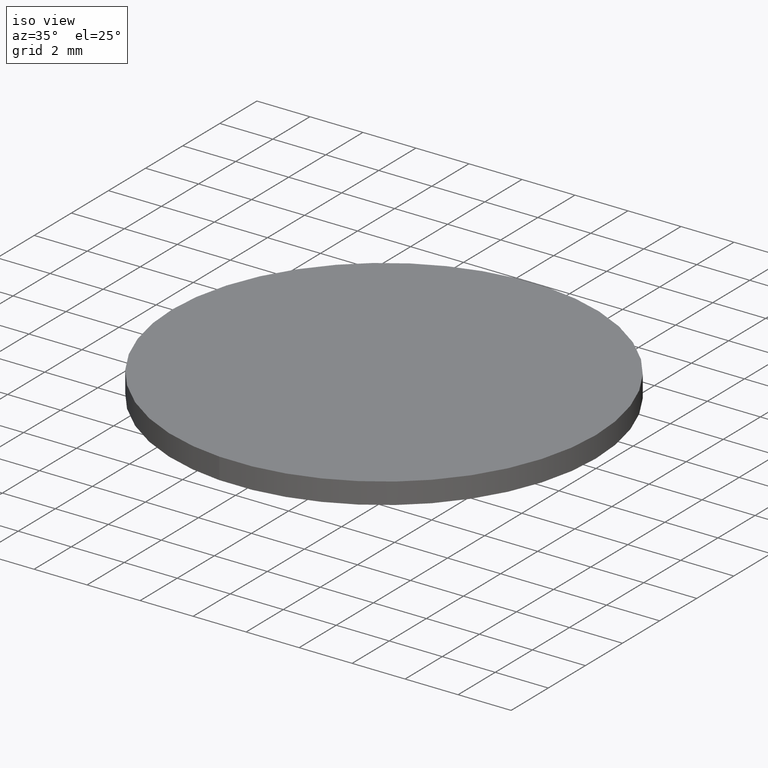
[diagram: clean part render]
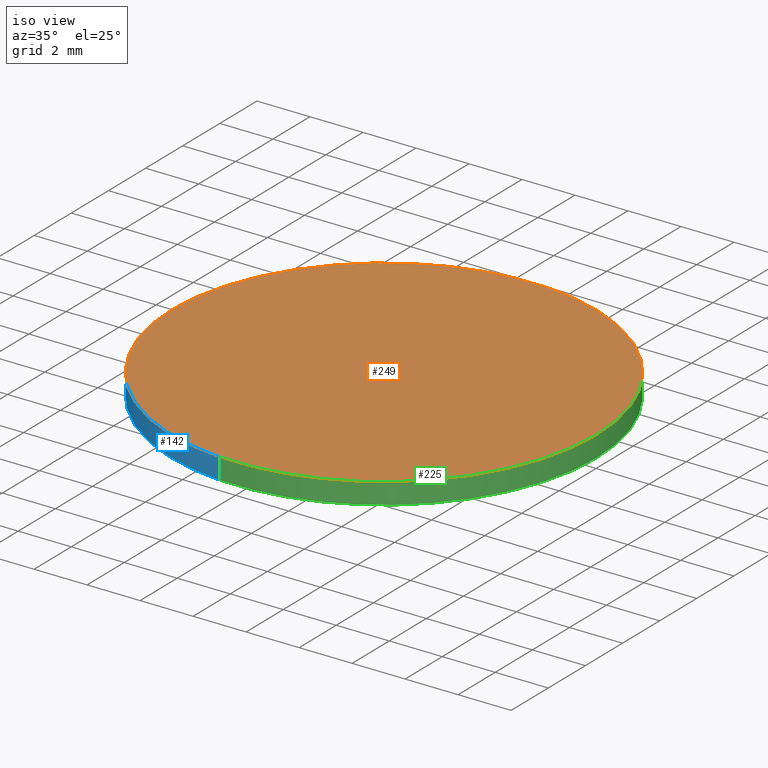
[diagram: same view with three faces highlighted in distinct colors, each labeled with its STEP entity id]
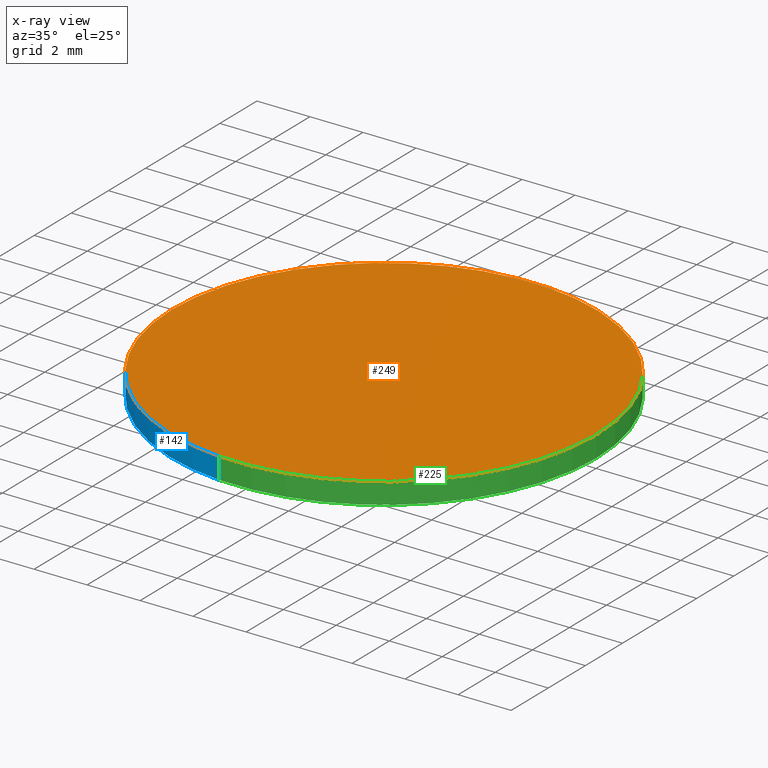
[diagram: x-ray of the same camera — body ghosted, the three highlighted faces saturated]
A machine part, iso view with three faces highlighted in distinct colors.
The next image is the same camera in x-ray (body ghosted, the three faces saturated) — at least one of them is partly hidden behind the body in this view.
Their STEP definitions:

[orange] entity #249 — the highlighted face is a freeform B-spline surface patch.
#79=CARTESIAN_POINT('',(-0.627668179024245,-7.975339030851241,0.800000000000023));
#80=VERTEX_POINT('',#79);
#86=CARTESIAN_POINT('',(-8.0,0.0,0.800000000000023));
#87=VERTEX_POINT('',#86);
#88=CARTESIAN_POINT('',(-8.0,0.0,0.800000000000023));
#89=CARTESIAN_POINT('',(-8.0,-7.395128199521873,0.800000000000023));
#90=CARTESIAN_POINT('',(-0.627668179024245,-7.975339030851242,0.800000000000023));
#98=(BOUNDED_CURVE()B_SPLINE_CURVE(2,(#88,#89,#90),.UNSPECIFIED.,.F.,.U.)B_SPLINE_CURVE_WITH_KNOTS((3,3),(0.0,0.236331399222893),.UNSPECIFIED.)CURVE()GEOMETRIC_REPRESENTATION_ITEM()RATIONAL_B_SPLINE_CURVE((1.0,0.723120543099679,0.969723561921978))REPRESENTATION_ITEM(''));
#99=EDGE_CURVE('',#87,#80,#98,.T.);
#101=CARTESIAN_POINT('',(0.627668179024243,7.975339030851241,0.800000000000023));
#102=VERTEX_POINT('',#101);
#103=CARTESIAN_POINT('',(0.627668179024243,7.975339030851241,0.800000000000023));
#104=CARTESIAN_POINT('',(0.314318552019287,8.0,0.800000000000023));
#105=CARTESIAN_POINT('',(0.0,8.0,0.800000000000023));
#106=CARTESIAN_POINT('',(-8.0,8.0,0.800000000000023));
#107=CARTESIAN_POINT('',(-8.0,0.0,0.800000000000023));
#115=(BOUNDED_CURVE()B_SPLINE_CURVE(2,(#103,#104,#105,#106,#107),.UNSPECIFIED.,.F.,.U.)B_SPLINE_CURVE_WITH_KNOTS((3,2,3),(0.736331399222893,0.750000000000000,1.0),.UNSPECIFIED.)CURVE()GEOMETRIC_REPRESENTATION_ITEM()RATIONAL_B_SPLINE_CURVE((0.969723561921979,0.983986238086868,1.0,0.707106781186548,1.0))REPRESENTATION_ITEM(''));
#116=EDGE_CURVE('',#102,#87,#115,.T.);
#192=CARTESIAN_POINT('',(8.0,0.0,0.800000000000023));
#193=VERTEX_POINT('',#192);
#194=CARTESIAN_POINT('',(8.0,0.0,0.800000000000023));
#195=CARTESIAN_POINT('',(8.0,7.395128199521874,0.800000000000023));
#196=CARTESIAN_POINT('',(0.627668179024243,7.975339030851241,0.800000000000023));
#204=(BOUNDED_CURVE()B_SPLINE_CURVE(2,(#194,#195,#196),.UNSPECIFIED.,.F.,.U.)B_SPLINE_CURVE_WITH_KNOTS((3,3),(0.500000000000000,0.736331399222893),.UNSPECIFIED.)CURVE()GEOMETRIC_REPRESENTATION_ITEM()RATIONAL_B_SPLINE_CURVE((1.0,0.723120543099679,0.969723561921979))REPRESENTATION_ITEM(''));
#205=EDGE_CURVE('',#193,#102,#204,.T.);
#207=CARTESIAN_POINT('',(-0.627668179024245,-7.975339030851242,0.800000000000023));
#208=CARTESIAN_POINT('',(-0.314318552019288,-8.0,0.800000000000023));
#209=CARTESIAN_POINT('',(0.0,-8.0,0.800000000000023));
#210=CARTESIAN_POINT('',(8.0,-8.0,0.800000000000023));
#211=CARTESIAN_POINT('',(8.0,0.0,0.800000000000023));
#219=(BOUNDED_CURVE()B_SPLINE_CURVE(2,(#207,#208,#209,#210,#211),.UNSPECIFIED.,.F.,.U.)B_SPLINE_CURVE_WITH_KNOTS((3,2,3),(0.236331399222893,0.250000000000000,0.500000000000000),.UNSPECIFIED.)CURVE()GEOMETRIC_REPRESENTATION_ITEM()RATIONAL_B_SPLINE_CURVE((0.969723561921978,0.983986238086868,1.0,0.707106781186548,1.0))REPRESENTATION_ITEM(''));
#220=EDGE_CURVE('',#80,#193,#219,.T.);
#238=CARTESIAN_POINT('',(-8.799199968988896,8.796758021814823,0.799999999999983));
#239=CARTESIAN_POINT('',(8.799200398142338,8.796758021814823,0.799999999999983));
#240=CARTESIAN_POINT('',(-8.799199968988896,-8.796758450968268,0.799999999999983));
#241=CARTESIAN_POINT('',(8.799200398142338,-8.796758450968268,0.799999999999983));
#242=B_SPLINE_SURFACE_WITH_KNOTS('',1,1,((#238,#240),(#239,#241)),.UNSPECIFIED.,.F.,.F.,.U.,(2,2),(2,2),(0.0,17.598400367131230),(0.0,17.593516472783090),.UNSPECIFIED.);
#243=ORIENTED_EDGE('',*,*,#99,.T.);
#244=ORIENTED_EDGE('',*,*,#220,.T.);
#245=ORIENTED_EDGE('',*,*,#205,.T.);
#246=ORIENTED_EDGE('',*,*,#116,.T.);
#247=EDGE_LOOP('',(#243,#244,#245,#246));
#248=FACE_OUTER_BOUND('',#247,.T.);
#249=ADVANCED_FACE('',(#248),#242,.F.);

[blue] entity #142 — the highlighted face is a freeform B-spline surface patch.
#44=CARTESIAN_POINT('',(-0.627672765822764,-7.975338669865021,0.820000000000024));
#45=CARTESIAN_POINT('',(-8.603011435687785,-7.347665904042257,0.820000000000024));
#46=CARTESIAN_POINT('',(-7.975338669865021,0.627672765822764,0.820000000000024));
#47=CARTESIAN_POINT('',(-7.347665904042257,8.603011435687785,0.820000000000024));
#48=CARTESIAN_POINT('',(0.627672765822764,7.975338669865021,0.820000000000024));
#49=CARTESIAN_POINT('',(-0.627672765822764,-7.975338669865021,-0.020500000000001));
#50=CARTESIAN_POINT('',(-8.603011435687785,-7.347665904042257,-0.020500000000001));
#51=CARTESIAN_POINT('',(-7.975338669865021,0.627672765822764,-0.020500000000001));
#52=CARTESIAN_POINT('',(-7.347665904042257,8.603011435687785,-0.020500000000001));
#53=CARTESIAN_POINT('',(0.627672765822764,7.975338669865021,-0.020500000000001));
#61=(BOUNDED_SURFACE()B_SPLINE_SURFACE(2,1,((#44,#49),(#45,#50),(#46,#51),(#47,#52),(#48,#53)),.UNSPECIFIED.,.F.,.F.,.U.)B_SPLINE_SURFACE_WITH_KNOTS((3,2,3),(2,2),(0.0,13.254833995939039,26.509667991878072),(0.0,1.0),.UNSPECIFIED.)GEOMETRIC_REPRESENTATION_ITEM()RATIONAL_B_SPLINE_SURFACE(((1.0,1.0),(0.707106781186548,0.707106781186548),(1.0,1.0),(0.707106781186548,0.707106781186548),(1.0,1.0)))REPRESENTATION_ITEM('')SURFACE());
#62=CARTESIAN_POINT('',(-8.0,0.0,0.0));
#63=VERTEX_POINT('',#62);
#64=CARTESIAN_POINT('',(-0.627668121750574,-7.975339035358710,8.752027E-014));
#65=VERTEX_POINT('',#64);
#66=CARTESIAN_POINT('',(-8.0,0.0,0.0));
#67=CARTESIAN_POINT('',(-8.0,-7.395128252793062,0.0));
#68=CARTESIAN_POINT('',(-0.627668121750574,-7.975339035358710,8.752027E-014));
#76=(BOUNDED_CURVE()B_SPLINE_CURVE(2,(#66,#67,#68),.UNSPECIFIED.,.F.,.U.)B_SPLINE_CURVE_WITH_KNOTS((3,3),(0.0,0.236331400453952),.UNSPECIFIED.)CURVE()GEOMETRIC_REPRESENTATION_ITEM()RATIONAL_B_SPLINE_CURVE((1.0,0.723120541657404,0.969723564491107))REPRESENTATION_ITEM(''));
#77=EDGE_CURVE('',#63,#65,#76,.T.);
#78=ORIENTED_EDGE('',*,*,#77,.T.);
#79=CARTESIAN_POINT('',(-0.627668179024245,-7.975339030851241,0.800000000000023));
#80=VERTEX_POINT('',#79);
#81=CARTESIAN_POINT('',(-0.627668179024245,-7.975339030851241,0.800000000000023));
#82=CARTESIAN_POINT('',(-0.627668121750574,-7.975339035358710,8.752027E-014));
#83=QUASI_UNIFORM_CURVE('',1,(#81,#82),.UNSPECIFIED.,.F.,.U.);
#84=EDGE_CURVE('',#80,#65,#83,.T.);
#85=ORIENTED_EDGE('',*,*,#84,.F.);
#86=CARTESIAN_POINT('',(-8.0,0.0,0.800000000000023));
#87=VERTEX_POINT('',#86);
#88=CARTESIAN_POINT('',(-8.0,0.0,0.800000000000023));
#89=CARTESIAN_POINT('',(-8.0,-7.395128199521873,0.800000000000023));
#90=CARTESIAN_POINT('',(-0.627668179024245,-7.975339030851242,0.800000000000023));
#98=(BOUNDED_CURVE()B_SPLINE_CURVE(2,(#88,#89,#90),.UNSPECIFIED.,.F.,.U.)B_SPLINE_CURVE_WITH_KNOTS((3,3),(0.0,0.236331399222893),.UNSPECIFIED.)CURVE()GEOMETRIC_REPRESENTATION_ITEM()RATIONAL_B_SPLINE_CURVE((1.0,0.723120543099679,0.969723561921978))REPRESENTATION_ITEM(''));
#99=EDGE_CURVE('',#87,#80,#98,.T.);
#100=ORIENTED_EDGE('',*,*,#99,.F.);
#101=CARTESIAN_POINT('',(0.627668179024243,7.975339030851241,0.800000000000023));
#102=VERTEX_POINT('',#101);
#103=CARTESIAN_POINT('',(0.627668179024243,7.975339030851241,0.800000000000023));
#104=CARTESIAN_POINT('',(0.314318552019287,8.0,0.800000000000023));
#105=CARTESIAN_POINT('',(0.0,8.0,0.800000000000023));
#106=CARTESIAN_POINT('',(-8.0,8.0,0.800000000000023));
#107=CARTESIAN_POINT('',(-8.0,0.0,0.800000000000023));
#115=(BOUNDED_CURVE()B_SPLINE_CURVE(2,(#103,#104,#105,#106,#107),.UNSPECIFIED.,.F.,.U.)B_SPLINE_CURVE_WITH_KNOTS((3,2,3),(0.736331399222893,0.750000000000000,1.0),.UNSPECIFIED.)CURVE()GEOMETRIC_REPRESENTATION_ITEM()RATIONAL_B_SPLINE_CURVE((0.969723561921979,0.983986238086868,1.0,0.707106781186548,1.0))REPRESENTATION_ITEM(''));
#116=EDGE_CURVE('',#102,#87,#115,.T.);
#117=ORIENTED_EDGE('',*,*,#116,.F.);
#118=CARTESIAN_POINT('',(0.627668121750574,7.975339035358710,8.752027E-014));
#119=VERTEX_POINT('',#118);
#120=CARTESIAN_POINT('',(0.627668179024243,7.975339030851241,0.800000000000023));
#121=CARTESIAN_POINT('',(0.627668121750574,7.975339035358710,8.752027E-014));
#122=QUASI_UNIFORM_CURVE('',1,(#120,#121),.UNSPECIFIED.,.F.,.U.);
#123=EDGE_CURVE('',#102,#119,#122,.T.);
#124=ORIENTED_EDGE('',*,*,#123,.T.);
#125=CARTESIAN_POINT('',(0.627668121750574,7.975339035358710,8.752027E-014));
#126=CARTESIAN_POINT('',(0.314318523249560,8.000000000000002,0.0));
#127=CARTESIAN_POINT('',(0.0,8.0,0.0));
#128=CARTESIAN_POINT('',(-8.0,8.0,0.0));
#129=CARTESIAN_POINT('',(-8.0,0.0,0.0));
#137=(BOUNDED_CURVE()B_SPLINE_CURVE(2,(#125,#126,#127,#128,#129),.UNSPECIFIED.,.F.,.U.)B_SPLINE_CURVE_WITH_KNOTS((3,2,3),(0.736331400453952,0.750000000000000,1.0),.UNSPECIFIED.)CURVE()GEOMETRIC_REPRESENTATION_ITEM()RATIONAL_B_SPLINE_CURVE((0.969723564491107,0.983986239529143,1.0,0.707106781186548,1.0))REPRESENTATION_ITEM(''));
#138=EDGE_CURVE('',#119,#63,#137,.T.);
#139=ORIENTED_EDGE('',*,*,#138,.T.);
#140=EDGE_LOOP('',(#78,#85,#100,#117,#124,#139));
#141=FACE_OUTER_BOUND('',#140,.T.);
#142=ADVANCED_FACE('',(#141),#61,.T.);

[green] entity #225 — the highlighted face is a freeform B-spline surface patch.
#64=CARTESIAN_POINT('',(-0.627668121750574,-7.975339035358710,8.752027E-014));
#65=VERTEX_POINT('',#64);
#79=CARTESIAN_POINT('',(-0.627668179024245,-7.975339030851241,0.800000000000023));
#80=VERTEX_POINT('',#79);
#81=CARTESIAN_POINT('',(-0.627668179024245,-7.975339030851241,0.800000000000023));
#82=CARTESIAN_POINT('',(-0.627668121750574,-7.975339035358710,8.752027E-014));
#83=QUASI_UNIFORM_CURVE('',1,(#81,#82),.UNSPECIFIED.,.F.,.U.);
#84=EDGE_CURVE('',#80,#65,#83,.T.);
#101=CARTESIAN_POINT('',(0.627668179024243,7.975339030851241,0.800000000000023));
#102=VERTEX_POINT('',#101);
#118=CARTESIAN_POINT('',(0.627668121750574,7.975339035358710,8.752027E-014));
#119=VERTEX_POINT('',#118);
#120=CARTESIAN_POINT('',(0.627668179024243,7.975339030851241,0.800000000000023));
#121=CARTESIAN_POINT('',(0.627668121750574,7.975339035358710,8.752027E-014));
#122=QUASI_UNIFORM_CURVE('',1,(#120,#121),.UNSPECIFIED.,.F.,.U.);
#123=EDGE_CURVE('',#102,#119,#122,.T.);
#143=CARTESIAN_POINT('',(0.627672765822764,7.975338669865021,0.820000000000024));
#144=CARTESIAN_POINT('',(8.603011435687785,7.347665904042257,0.820000000000024));
#145=CARTESIAN_POINT('',(7.975338669865021,-0.627672765822764,0.820000000000024));
#146=CARTESIAN_POINT('',(7.347665904042257,-8.603011435687785,0.820000000000024));
#147=CARTESIAN_POINT('',(-0.627672765822764,-7.975338669865021,0.820000000000024));
#148=CARTESIAN_POINT('',(0.627672765822764,7.975338669865021,-0.020500000000001));
#149=CARTESIAN_POINT('',(8.603011435687785,7.347665904042257,-0.020500000000001));
#150=CARTESIAN_POINT('',(7.975338669865021,-0.627672765822764,-0.020500000000001));
#151=CARTESIAN_POINT('',(7.347665904042257,-8.603011435687785,-0.020500000000001));
#152=CARTESIAN_POINT('',(-0.627672765822764,-7.975338669865021,-0.020500000000001));
#160=(BOUNDED_SURFACE()B_SPLINE_SURFACE(2,1,((#143,#148),(#144,#149),(#145,#150),(#146,#151),(#147,#152)),.UNSPECIFIED.,.F.,.F.,.U.)B_SPLINE_SURFACE_WITH_KNOTS((3,2,3),(2,2),(0.0,13.254833995939039,26.509667991878072),(0.0,1.0),.UNSPECIFIED.)GEOMETRIC_REPRESENTATION_ITEM()RATIONAL_B_SPLINE_SURFACE(((1.0,1.0),(0.707106781186548,0.707106781186548),(1.0,1.0),(0.707106781186548,0.707106781186548),(1.0,1.0)))REPRESENTATION_ITEM('')SURFACE());
#161=CARTESIAN_POINT('',(8.0,0.0,0.0));
#162=VERTEX_POINT('',#161);
#163=CARTESIAN_POINT('',(-0.627668121750574,-7.975339035358710,8.752027E-014));
#164=CARTESIAN_POINT('',(-0.314318523249561,-8.000000000000002,0.0));
#165=CARTESIAN_POINT('',(0.0,-8.0,0.0));
#166=CARTESIAN_POINT('',(8.0,-8.0,0.0));
#167=CARTESIAN_POINT('',(8.0,0.0,0.0));
#175=(BOUNDED_CURVE()B_SPLINE_CURVE(2,(#163,#164,#165,#166,#167),.UNSPECIFIED.,.F.,.U.)B_SPLINE_CURVE_WITH_KNOTS((3,2,3),(0.236331400453952,0.250000000000000,0.500000000000000),.UNSPECIFIED.)CURVE()GEOMETRIC_REPRESENTATION_ITEM()RATIONAL_B_SPLINE_CURVE((0.969723564491107,0.983986239529143,1.0,0.707106781186548,1.0))REPRESENTATION_ITEM(''));
#176=EDGE_CURVE('',#65,#162,#175,.T.);
#177=ORIENTED_EDGE('',*,*,#176,.T.);
#178=CARTESIAN_POINT('',(8.0,0.0,0.0));
#179=CARTESIAN_POINT('',(8.0,7.395128252793063,0.0));
#180=CARTESIAN_POINT('',(0.627668121750574,7.975339035358710,8.752027E-014));
#188=(BOUNDED_CURVE()B_SPLINE_CURVE(2,(#178,#179,#180),.UNSPECIFIED.,.F.,.U.)B_SPLINE_CURVE_WITH_KNOTS((3,3),(0.500000000000000,0.736331400453952),.UNSPECIFIED.)CURVE()GEOMETRIC_REPRESENTATION_ITEM()RATIONAL_B_SPLINE_CURVE((1.0,0.723120541657404,0.969723564491107))REPRESENTATION_ITEM(''));
#189=EDGE_CURVE('',#162,#119,#188,.T.);
#190=ORIENTED_EDGE('',*,*,#189,.T.);
#191=ORIENTED_EDGE('',*,*,#123,.F.);
#192=CARTESIAN_POINT('',(8.0,0.0,0.800000000000023));
#193=VERTEX_POINT('',#192);
#194=CARTESIAN_POINT('',(8.0,0.0,0.800000000000023));
#195=CARTESIAN_POINT('',(8.0,7.395128199521874,0.800000000000023));
#196=CARTESIAN_POINT('',(0.627668179024243,7.975339030851241,0.800000000000023));
#204=(BOUNDED_CURVE()B_SPLINE_CURVE(2,(#194,#195,#196),.UNSPECIFIED.,.F.,.U.)B_SPLINE_CURVE_WITH_KNOTS((3,3),(0.500000000000000,0.736331399222893),.UNSPECIFIED.)CURVE()GEOMETRIC_REPRESENTATION_ITEM()RATIONAL_B_SPLINE_CURVE((1.0,0.723120543099679,0.969723561921979))REPRESENTATION_ITEM(''));
#205=EDGE_CURVE('',#193,#102,#204,.T.);
#206=ORIENTED_EDGE('',*,*,#205,.F.);
#207=CARTESIAN_POINT('',(-0.627668179024245,-7.975339030851242,0.800000000000023));
#208=CARTESIAN_POINT('',(-0.314318552019288,-8.0,0.800000000000023));
#209=CARTESIAN_POINT('',(0.0,-8.0,0.800000000000023));
#210=CARTESIAN_POINT('',(8.0,-8.0,0.800000000000023));
#211=CARTESIAN_POINT('',(8.0,0.0,0.800000000000023));
#219=(BOUNDED_CURVE()B_SPLINE_CURVE(2,(#207,#208,#209,#210,#211),.UNSPECIFIED.,.F.,.U.)B_SPLINE_CURVE_WITH_KNOTS((3,2,3),(0.236331399222893,0.250000000000000,0.500000000000000),.UNSPECIFIED.)CURVE()GEOMETRIC_REPRESENTATION_ITEM()RATIONAL_B_SPLINE_CURVE((0.969723561921978,0.983986238086868,1.0,0.707106781186548,1.0))REPRESENTATION_ITEM(''));
#220=EDGE_CURVE('',#80,#193,#219,.T.);
#221=ORIENTED_EDGE('',*,*,#220,.F.);
#222=ORIENTED_EDGE('',*,*,#84,.T.);
#223=EDGE_LOOP('',(#177,#190,#191,#206,#221,#222));
#224=FACE_OUTER_BOUND('',#223,.T.);
#225=ADVANCED_FACE('',(#224),#160,.T.);